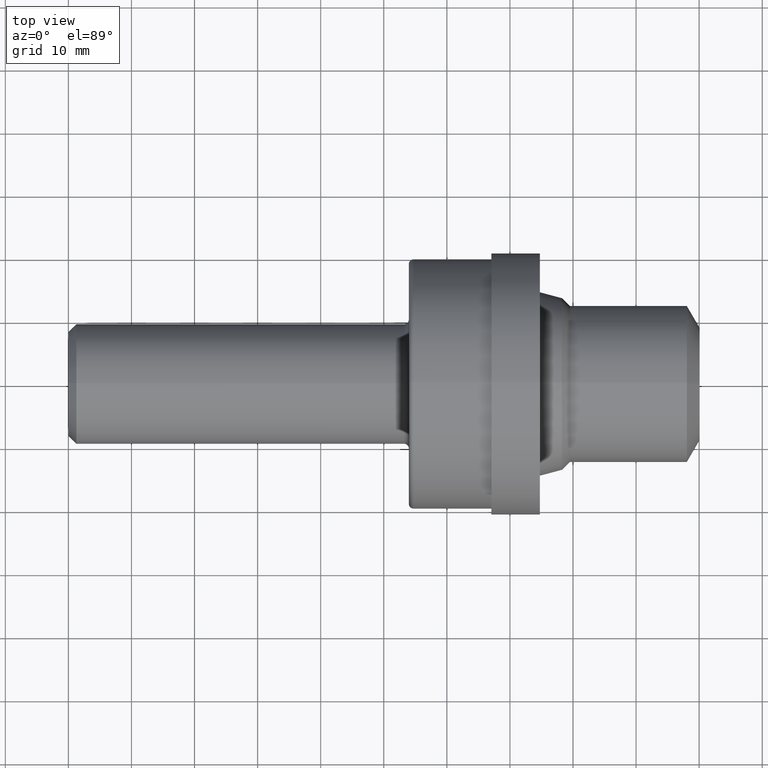
[diagram: clean part render]
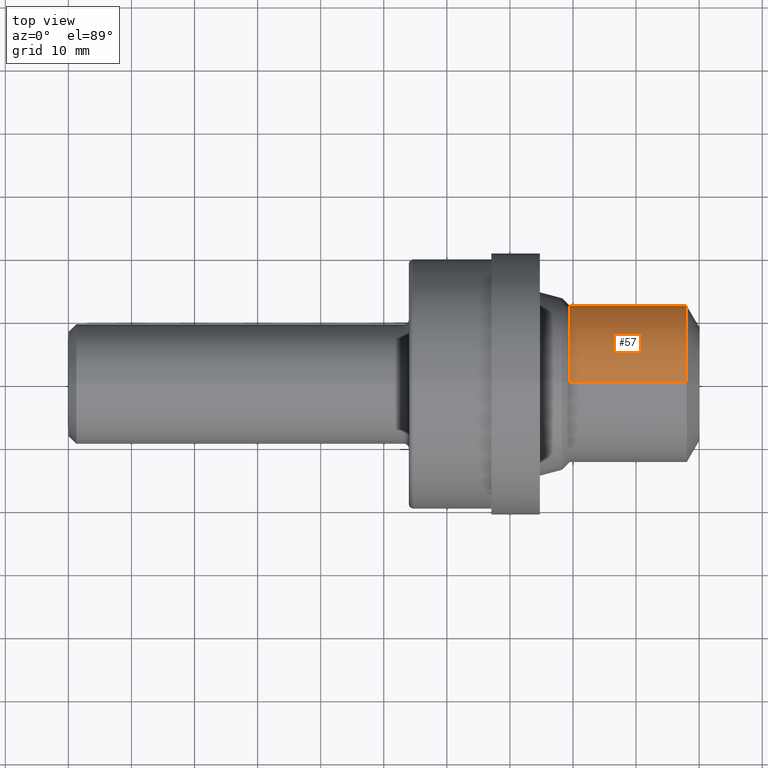
[diagram: same view with one face highlighted and labeled with its STEP entity id]
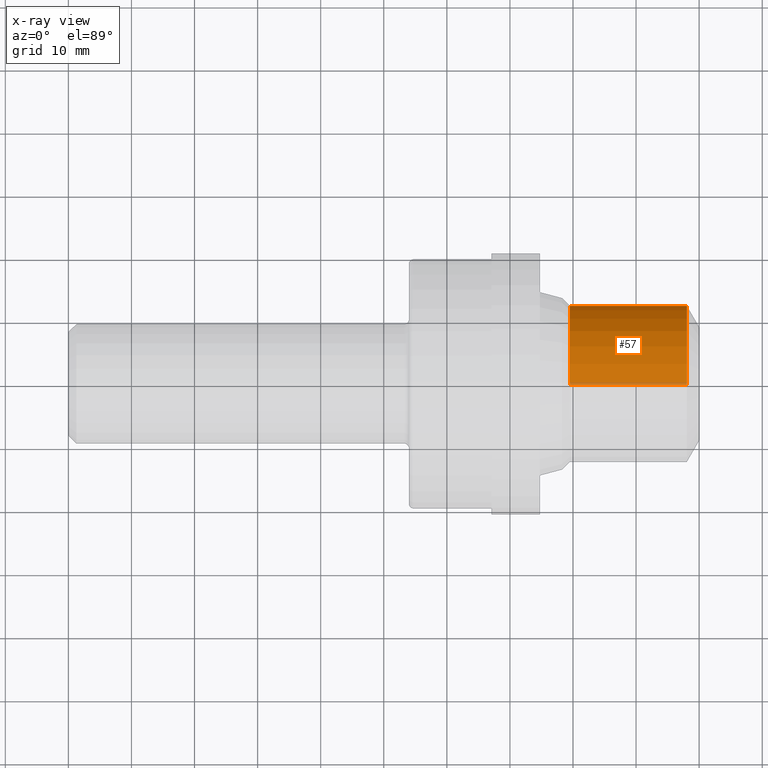
[diagram: x-ray of the same camera — body ghosted, the highlighted face saturated]
A machine part, top view. The second image highlights one B-rep face of the part: STEP entity #57.
The next image is the same camera in x-ray: the body ghosted, the highlighted face saturated — about 3% of this face is hidden behind the body in this view.
In plain terms, the highlighted cylindrical surface (partial cylindrical patch) has radius 12.4333 mm, axis along (-1, -0, -0).
Its self-contained STEP definition (entity closure, byte-faithful):
#12 = EDGE_CURVE ( 'NONE', #632, #578, #557, .T. ) ;
#28 = ORIENTED_EDGE ( 'NONE', *, *, #322, .T. ) ;
#31 = LINE ( 'NONE', #268, #531 ) ;
#57 = ADVANCED_FACE ( 'NONE', ( #276 ), #543, .T. ) ;
#83 = CIRCLE ( 'NONE', #443, 0.4894999999999999907 ) ;
#119 = DIRECTION ( 'NONE',  ( -1.000000000000000000, -0.0000000000000000000, -0.0000000000000000000 ) ) ;
#121 = CARTESIAN_POINT ( 'NONE',  ( 3.129773011444504593, 0.0000000000000000000, 0.4894999999999999907 ) ) ;
#135 = DIRECTION ( 'NONE',  ( -1.000000000000000000, -0.0000000000000000000, -0.0000000000000000000 ) ) ;
#164 = DIRECTION ( 'NONE',  ( -1.000000000000000000, -0.0000000000000000000, -0.0000000000000000000 ) ) ;
#223 = CARTESIAN_POINT ( 'NONE',  ( 3.129773011444504593, 0.0000000000000000000, 0.0000000000000000000 ) ) ;
#244 = CARTESIAN_POINT ( 'NONE',  ( 0.0000000000000000000, 0.0000000000000000000, 0.4894999999999999907 ) ) ;
#250 = AXIS2_PLACEMENT_3D ( 'NONE', #499, #448, #396 ) ;
#268 = CARTESIAN_POINT ( 'NONE',  ( 0.0000000000000000000, 5.994646081826293618E-17, -0.4894999999999999907 ) ) ;
#274 = DIRECTION ( 'NONE',  ( 0.0000000000000000000, 0.0000000000000000000, 1.000000000000000000 ) ) ;
#276 = FACE_OUTER_BOUND ( 'NONE', #617, .T. ) ;
#287 = ORIENTED_EDGE ( 'NONE', *, *, #393, .F. ) ;
#313 = CARTESIAN_POINT ( 'NONE',  ( 3.859999999999999876, 0.0000000000000000000, 0.4894999999999999907 ) ) ;
#322 = EDGE_CURVE ( 'NONE', #395, #539, #31, .T. ) ;
#393 = EDGE_CURVE ( 'NONE', #578, #539, #83, .T. ) ;
#395 = VERTEX_POINT ( 'NONE', #485 ) ;
#396 = DIRECTION ( 'NONE',  ( 0.0000000000000000000, 0.0000000000000000000, 1.000000000000000000 ) ) ;
#399 = EDGE_CURVE ( 'NONE', #632, #395, #621, .T. ) ;
#417 = VECTOR ( 'NONE', #135, 39.37007874015748143 ) ;
#443 = AXIS2_PLACEMENT_3D ( 'NONE', #223, #119, #591 ) ;
#444 = CARTESIAN_POINT ( 'NONE',  ( 3.129773011444504593, 6.293294643577743942E-17, -0.4894999999999999907 ) ) ;
#448 = DIRECTION ( 'NONE',  ( -1.000000000000000000, -0.0000000000000000000, -0.0000000000000000000 ) ) ;
#478 = AXIS2_PLACEMENT_3D ( 'NONE', #648, #594, #274 ) ;
#485 = CARTESIAN_POINT ( 'NONE',  ( 3.859999999999999876, 5.994646081826293618E-17, -0.4894999999999999907 ) ) ;
#499 = CARTESIAN_POINT ( 'NONE',  ( 0.0000000000000000000, 0.0000000000000000000, 0.0000000000000000000 ) ) ;
#531 = VECTOR ( 'NONE', #164, 39.37007874015748143 ) ;
#539 = VERTEX_POINT ( 'NONE', #444 ) ;
#543 = CYLINDRICAL_SURFACE ( 'NONE', #250, 0.4894999999999999907 ) ;
#557 = LINE ( 'NONE', #244, #417 ) ;
#578 = VERTEX_POINT ( 'NONE', #121 ) ;
#591 = DIRECTION ( 'NONE',  ( 0.0000000000000000000, 0.0000000000000000000, 1.000000000000000000 ) ) ;
#594 = DIRECTION ( 'NONE',  ( -1.000000000000000000, -0.0000000000000000000, -0.0000000000000000000 ) ) ;
#595 = ORIENTED_EDGE ( 'NONE', *, *, #399, .T. ) ;
#617 = EDGE_LOOP ( 'NONE', ( #595, #28, #287, #661 ) ) ;
#621 = CIRCLE ( 'NONE', #478, 0.4894999999999999907 ) ;
#632 = VERTEX_POINT ( 'NONE', #313 ) ;
#648 = CARTESIAN_POINT ( 'NONE',  ( 3.859999999999999876, 0.0000000000000000000, 0.0000000000000000000 ) ) ;
#661 = ORIENTED_EDGE ( 'NONE', *, *, #12, .F. ) ;